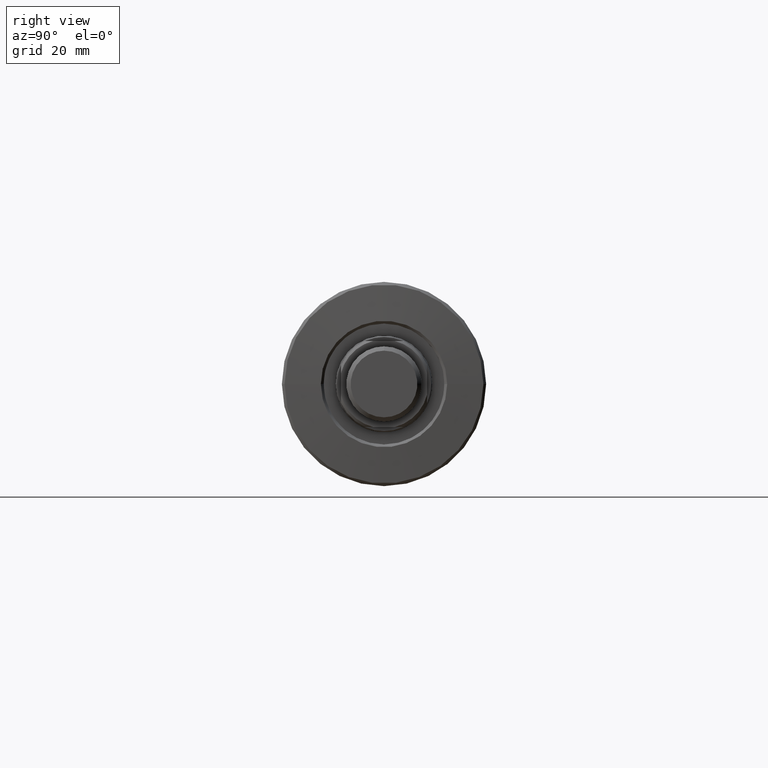
[diagram: clean part render]
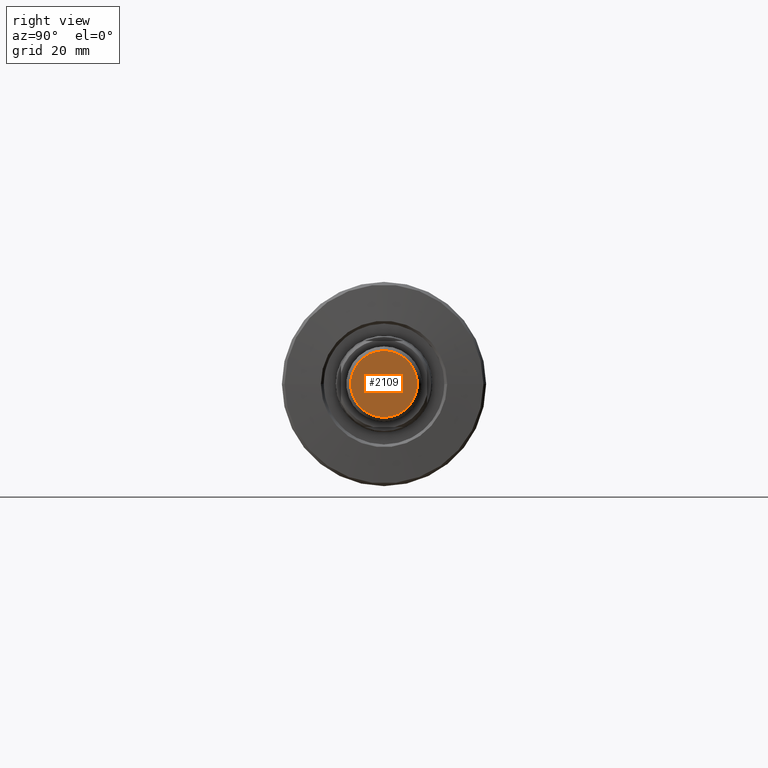
[diagram: same view with one face highlighted and labeled with its STEP entity id]
A machine part, right view. The second image highlights one B-rep face of the part: STEP entity #2109.
In plain terms, the highlighted planar face has unit normal (-1, -0, 0).
Its self-contained STEP definition (entity closure, byte-faithful):
#135 = CIRCLE ( 'NONE', #2444, 6.199999999999999289 ) ;
#244 = CARTESIAN_POINT ( 'NONE',  ( 6.199999999999999289, 0.000000000000000000, 0.000000000000000000 ) ) ;
#895 = AXIS2_PLACEMENT_3D ( 'NONE', #2129, #2328, #1015 ) ;
#903 = CARTESIAN_POINT ( 'NONE',  ( 0.000000000000000000, 0.000000000000000000, 0.000000000000000000 ) ) ;
#1015 = DIRECTION ( 'NONE',  ( 1.000000000000000000, 0.000000000000000000, -0.000000000000000000 ) ) ;
#1072 = AXIS2_PLACEMENT_3D ( 'NONE', #903, #1273, #1951 ) ;
#1109 = EDGE_LOOP ( 'NONE', ( #1200, #1526 ) ) ;
#1200 = ORIENTED_EDGE ( 'NONE', *, *, #2258, .T. ) ;
#1273 = DIRECTION ( 'NONE',  ( -0.000000000000000000, -0.000000000000000000, -1.000000000000000000 ) ) ;
#1423 = FACE_OUTER_BOUND ( 'NONE', #1109, .T. ) ;
#1526 = ORIENTED_EDGE ( 'NONE', *, *, #2715, .T. ) ;
#1660 = PLANE ( 'NONE',  #895 ) ;
#1789 = DIRECTION ( 'NONE',  ( 1.000000000000000000, 0.000000000000000000, 0.000000000000000000 ) ) ;
#1934 = CARTESIAN_POINT ( 'NONE',  ( -6.199999999999999289, 8.082668874372528061E-16, 0.000000000000000000 ) ) ;
#1951 = DIRECTION ( 'NONE',  ( 1.000000000000000000, 0.000000000000000000, 0.000000000000000000 ) ) ;
#2109 = ADVANCED_FACE ( 'NONE', ( #1423 ), #1660, .F. ) ;
#2129 = CARTESIAN_POINT ( 'NONE',  ( 0.000000000000000000, 0.000000000000000000, 0.000000000000000000 ) ) ;
#2258 = EDGE_CURVE ( 'NONE', #2734, #2496, #2349, .T. ) ;
#2328 = DIRECTION ( 'NONE',  ( 0.000000000000000000, 0.000000000000000000, 1.000000000000000000 ) ) ;
#2349 = CIRCLE ( 'NONE', #1072, 6.199999999999999289 ) ;
#2444 = AXIS2_PLACEMENT_3D ( 'NONE', #2691, #2665, #1789 ) ;
#2496 = VERTEX_POINT ( 'NONE', #1934 ) ;
#2665 = DIRECTION ( 'NONE',  ( -0.000000000000000000, -0.000000000000000000, -1.000000000000000000 ) ) ;
#2691 = CARTESIAN_POINT ( 'NONE',  ( 0.000000000000000000, 0.000000000000000000, 0.000000000000000000 ) ) ;
#2715 = EDGE_CURVE ( 'NONE', #2496, #2734, #135, .T. ) ;
#2734 = VERTEX_POINT ( 'NONE', #244 ) ;